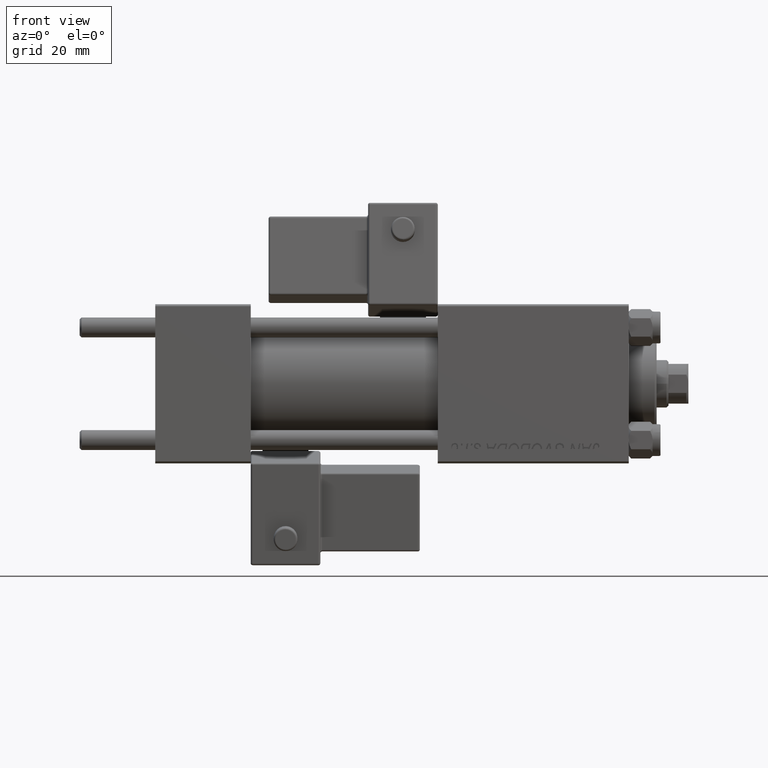
[diagram: clean part render]
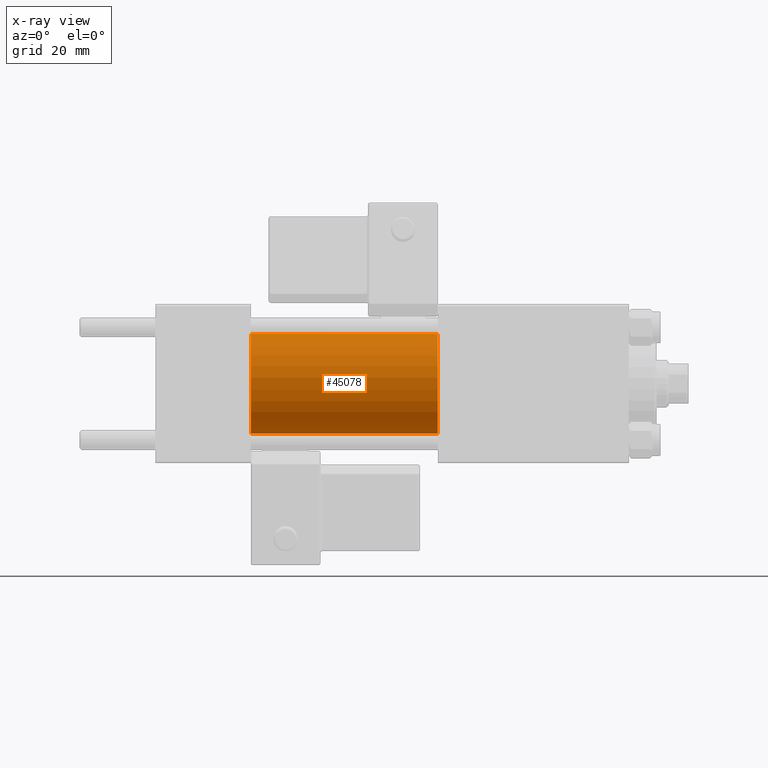
[diagram: x-ray — body ghosted, one internal face saturated and labeled with its STEP entity id]
A machine part, front view, then the same camera in x-ray: the body is ghosted and one INTERNAL B-rep face — a face not visible from any outside direction — is saturated and labeled: STEP entity #45078.
In plain terms, the highlighted cylindrical surface (partial cylindrical patch) has radius 12.5 mm, axis along (-1, -0, -0).
Its self-contained STEP definition (entity closure, byte-faithful):
#470 = CARTESIAN_POINT ( 'NONE',  ( 24.00000000000000000, 0.000000000000000000, 0.000000000000000000 ) ) ;
#1408 = LINE ( 'NONE', #21650, #30980 ) ;
#2125 = FACE_OUTER_BOUND ( 'NONE', #28065, .T. ) ;
#2382 = DIRECTION ( 'NONE',  ( 0.000000000000000000, 0.000000000000000000, 1.000000000000000000 ) ) ;
#4564 = ORIENTED_EDGE ( 'NONE', *, *, #50767, .F. ) ;
#7837 = DIRECTION ( 'NONE',  ( 1.000000000000000000, 0.000000000000000000, 0.000000000000000000 ) ) ;
#9320 = DIRECTION ( 'NONE',  ( 0.000000000000000000, 0.000000000000000000, -1.000000000000000000 ) ) ;
#11236 = CARTESIAN_POINT ( 'NONE',  ( 71.00000000000001421, 0.000000000000000000, 12.49999999999999645 ) ) ;
#11726 = ORIENTED_EDGE ( 'NONE', *, *, #15039, .T. ) ;
#12658 = AXIS2_PLACEMENT_3D ( 'NONE', #34236, #17411, #2382 ) ;
#13274 = DIRECTION ( 'NONE',  ( 1.000000000000000000, 0.000000000000000000, 0.000000000000000000 ) ) ;
#15039 = EDGE_CURVE ( 'NONE', #43957, #51530, #20157, .T. ) ;
#15278 = CARTESIAN_POINT ( 'NONE',  ( 71.00000000000001421, 1.530808498934191127E-15, -12.49999999999999645 ) ) ;
#17411 = DIRECTION ( 'NONE',  ( -1.000000000000000000, -0.000000000000000000, -0.000000000000000000 ) ) ;
#17480 = CARTESIAN_POINT ( 'NONE',  ( 71.00000000000001421, 0.000000000000000000, 0.000000000000000000 ) ) ;
#18175 = CYLINDRICAL_SURFACE ( 'NONE', #12658, 12.49999999999999645 ) ;
#18351 = LINE ( 'NONE', #22292, #45369 ) ;
#20157 = CIRCLE ( 'NONE', #41195, 12.49999999999999645 ) ;
#21650 = CARTESIAN_POINT ( 'NONE',  ( 71.00000000000001421, 1.530808498934191127E-15, -12.49999999999999645 ) ) ;
#22292 = CARTESIAN_POINT ( 'NONE',  ( 71.00000000000001421, 0.000000000000000000, 12.49999999999999645 ) ) ;
#26959 = ORIENTED_EDGE ( 'NONE', *, *, #41098, .T. ) ;
#26989 = AXIS2_PLACEMENT_3D ( 'NONE', #470, #7837, #36525 ) ;
#28065 = EDGE_LOOP ( 'NONE', ( #11726, #26959, #4564, #28893 ) ) ;
#28893 = ORIENTED_EDGE ( 'NONE', *, *, #41871, .F. ) ;
#30447 = DIRECTION ( 'NONE',  ( -1.000000000000000000, -0.000000000000000000, -0.000000000000000000 ) ) ;
#30980 = VECTOR ( 'NONE', #37718, 1000.000000000000000 ) ;
#33299 = CARTESIAN_POINT ( 'NONE',  ( 24.00000000000000000, 1.530808498934191127E-15, -12.49999999999999645 ) ) ;
#34236 = CARTESIAN_POINT ( 'NONE',  ( 71.00000000000001421, 0.000000000000000000, 0.000000000000000000 ) ) ;
#36525 = DIRECTION ( 'NONE',  ( 0.000000000000000000, 0.000000000000000000, -1.000000000000000000 ) ) ;
#36811 = VERTEX_POINT ( 'NONE', #33299 ) ;
#37718 = DIRECTION ( 'NONE',  ( -1.000000000000000000, -0.000000000000000000, -0.000000000000000000 ) ) ;
#41098 = EDGE_CURVE ( 'NONE', #51530, #36811, #1408, .T. ) ;
#41195 = AXIS2_PLACEMENT_3D ( 'NONE', #17480, #13274, #9320 ) ;
#41871 = EDGE_CURVE ( 'NONE', #43957, #50154, #18351, .T. ) ;
#43957 = VERTEX_POINT ( 'NONE', #11236 ) ;
#45078 = ADVANCED_FACE ( 'NONE', ( #2125 ), #18175, .F. ) ;
#45369 = VECTOR ( 'NONE', #30447, 1000.000000000000000 ) ;
#46726 = CARTESIAN_POINT ( 'NONE',  ( 24.00000000000000000, 0.000000000000000000, 12.49999999999999645 ) ) ;
#49727 = CIRCLE ( 'NONE', #26989, 12.49999999999999645 ) ;
#50154 = VERTEX_POINT ( 'NONE', #46726 ) ;
#50767 = EDGE_CURVE ( 'NONE', #50154, #36811, #49727, .T. ) ;
#51530 = VERTEX_POINT ( 'NONE', #15278 ) ;